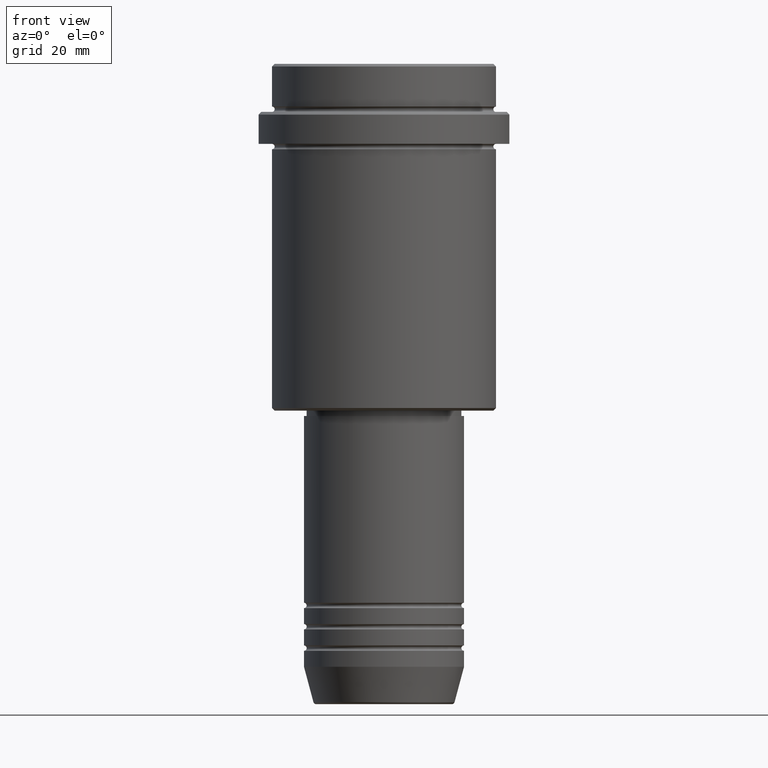
[diagram: clean part render]
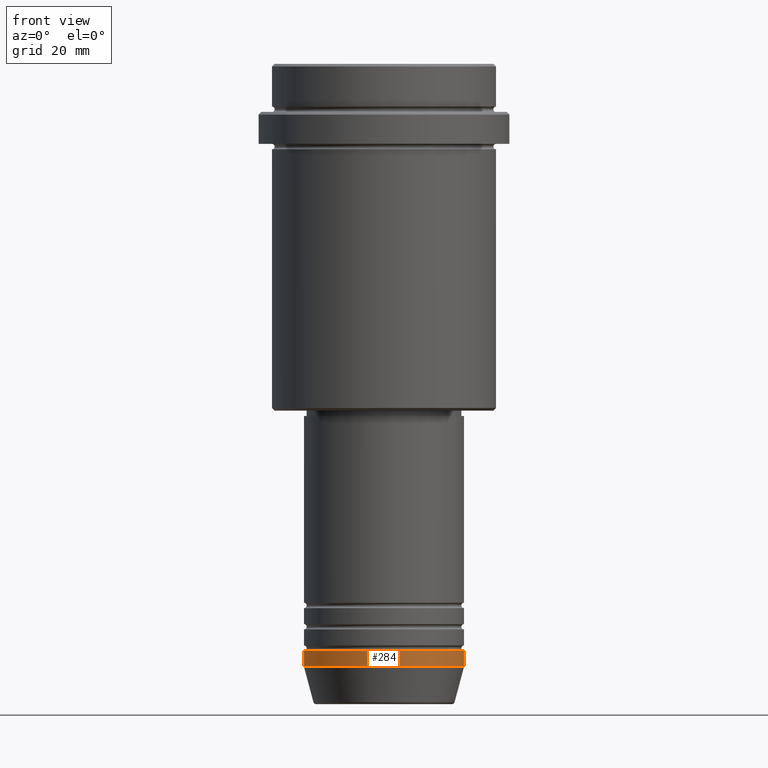
[diagram: same view with one face highlighted and labeled with its STEP entity id]
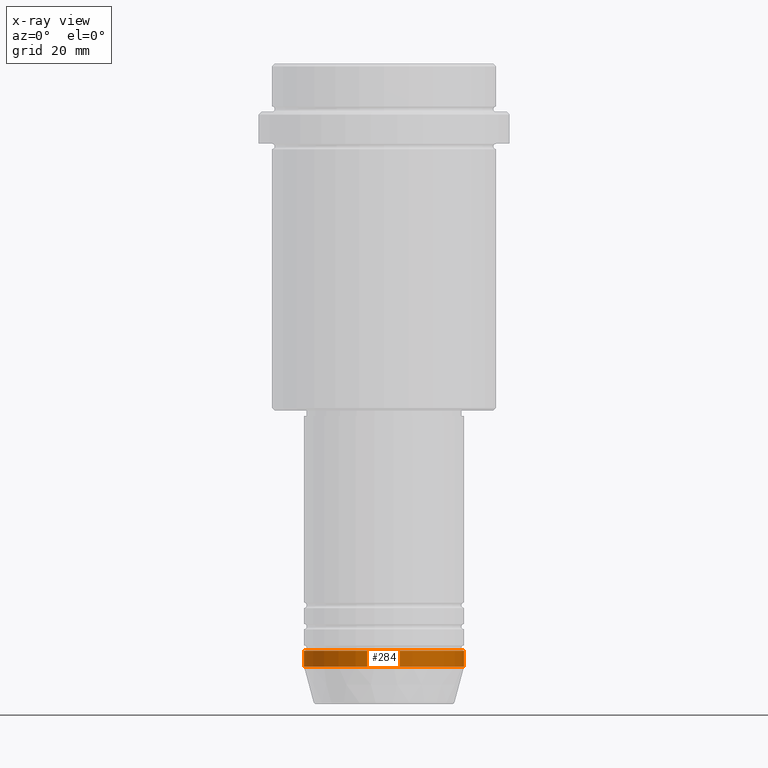
[diagram: x-ray of the same camera — body ghosted, the highlighted face saturated]
A machine part, front view. The second image highlights one B-rep face of the part: STEP entity #284.
The next image is the same camera in x-ray: the body ghosted, the highlighted face saturated — about 0% of this face is hidden behind the body in this view.
In plain terms, the highlighted cylindrical surface (partial cylindrical patch) has radius 15 mm, axis along (-0, -0, 1).
Its self-contained STEP definition (entity closure, byte-faithful):
#3 = CYLINDRICAL_SURFACE ( 'NONE', #335, 15.00000000000000000 ) ;
#47 = CIRCLE ( 'NONE', #1094, 15.00000000000000000 ) ;
#91 = VECTOR ( 'NONE', #1315, 1000.000000000000000 ) ;
#102 = DIRECTION ( 'NONE',  ( -0.000000000000000000, -0.000000000000000000, 1.000000000000000000 ) ) ;
#116 = DIRECTION ( 'NONE',  ( 1.000000000000000000, 0.000000000000000000, 0.000000000000000000 ) ) ;
#148 = EDGE_CURVE ( 'NONE', #578, #674, #311, .T. ) ;
#186 = DIRECTION ( 'NONE',  ( 1.000000000000000000, 0.000000000000000000, 0.000000000000000000 ) ) ;
#196 = AXIS2_PLACEMENT_3D ( 'NONE', #1101, #1404, #186 ) ;
#283 = LINE ( 'NONE', #459, #613 ) ;
#284 = ADVANCED_FACE ( 'NONE', ( #1292 ), #3, .T. ) ;
#311 = CIRCLE ( 'NONE', #196, 15.00000000000000000 ) ;
#321 = CARTESIAN_POINT ( 'NONE',  ( 15.00000000000000000, 0.000000000000000000, -110.0000000000000000 ) ) ;
#335 = AXIS2_PLACEMENT_3D ( 'NONE', #647, #102, #116 ) ;
#459 = CARTESIAN_POINT ( 'NONE',  ( 15.00000000000000000, 0.000000000000000000, 0.000000000000000000 ) ) ;
#472 = ORIENTED_EDGE ( 'NONE', *, *, #148, .F. ) ;
#505 = CARTESIAN_POINT ( 'NONE',  ( 0.000000000000000000, 0.000000000000000000, -113.0000000000000000 ) ) ;
#557 = EDGE_CURVE ( 'NONE', #1378, #1295, #47, .T. ) ;
#578 = VERTEX_POINT ( 'NONE', #960 ) ;
#613 = VECTOR ( 'NONE', #892, 1000.000000000000000 ) ;
#647 = CARTESIAN_POINT ( 'NONE',  ( 0.000000000000000000, 0.000000000000000000, 0.000000000000000000 ) ) ;
#674 = VERTEX_POINT ( 'NONE', #321 ) ;
#778 = CARTESIAN_POINT ( 'NONE',  ( -15.00000000000000000, 1.836970198721029589E-15, -113.0000000000000000 ) ) ;
#794 = ORIENTED_EDGE ( 'NONE', *, *, #1287, .T. ) ;
#892 = DIRECTION ( 'NONE',  ( -0.000000000000000000, -0.000000000000000000, 1.000000000000000000 ) ) ;
#960 = CARTESIAN_POINT ( 'NONE',  ( -15.00000000000000000, 1.836970198721029589E-15, -110.0000000000000000 ) ) ;
#1000 = CARTESIAN_POINT ( 'NONE',  ( 15.00000000000000000, 0.000000000000000000, -113.0000000000000000 ) ) ;
#1084 = CARTESIAN_POINT ( 'NONE',  ( -15.00000000000000000, 1.836970198721029589E-15, 0.000000000000000000 ) ) ;
#1094 = AXIS2_PLACEMENT_3D ( 'NONE', #505, #1151, #1386 ) ;
#1101 = CARTESIAN_POINT ( 'NONE',  ( 0.000000000000000000, 0.000000000000000000, -110.0000000000000000 ) ) ;
#1151 = DIRECTION ( 'NONE',  ( -0.000000000000000000, -0.000000000000000000, 1.000000000000000000 ) ) ;
#1165 = EDGE_CURVE ( 'NONE', #1378, #578, #1416, .T. ) ;
#1287 = EDGE_CURVE ( 'NONE', #1295, #674, #283, .T. ) ;
#1292 = FACE_OUTER_BOUND ( 'NONE', #1316, .T. ) ;
#1295 = VERTEX_POINT ( 'NONE', #1000 ) ;
#1310 = ORIENTED_EDGE ( 'NONE', *, *, #1165, .F. ) ;
#1315 = DIRECTION ( 'NONE',  ( -0.000000000000000000, -0.000000000000000000, 1.000000000000000000 ) ) ;
#1316 = EDGE_LOOP ( 'NONE', ( #1310, #1334, #794, #472 ) ) ;
#1334 = ORIENTED_EDGE ( 'NONE', *, *, #557, .T. ) ;
#1378 = VERTEX_POINT ( 'NONE', #778 ) ;
#1386 = DIRECTION ( 'NONE',  ( 1.000000000000000000, 0.000000000000000000, 0.000000000000000000 ) ) ;
#1404 = DIRECTION ( 'NONE',  ( -0.000000000000000000, -0.000000000000000000, 1.000000000000000000 ) ) ;
#1416 = LINE ( 'NONE', #1084, #91 ) ;